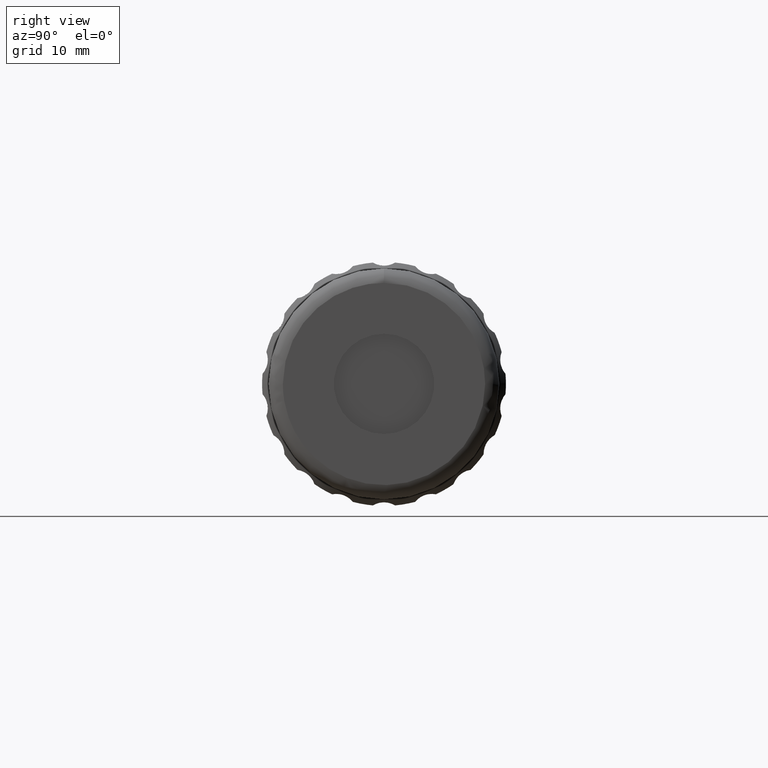
[diagram: clean part render]
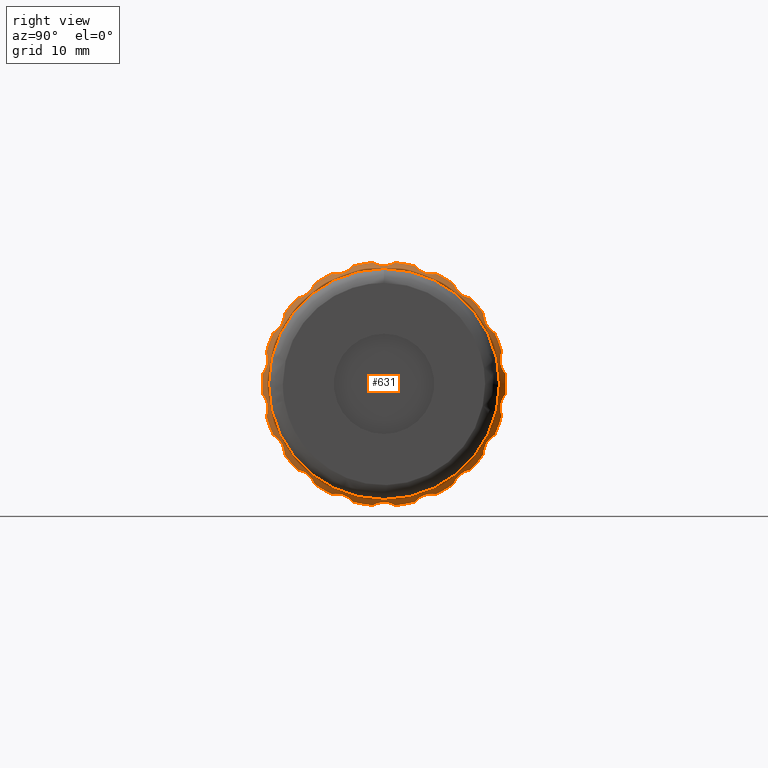
[diagram: same view with one face highlighted and labeled with its STEP entity id]
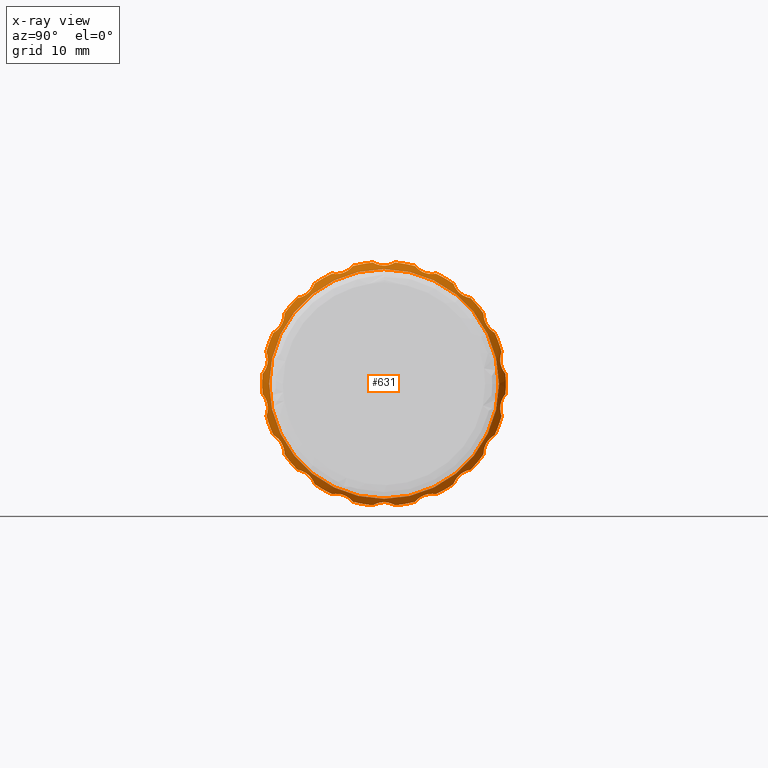
[diagram: x-ray of the same camera — body ghosted, the highlighted face saturated]
A machine part, right view. The second image highlights one B-rep face of the part: STEP entity #631.
The next image is the same camera in x-ray: the body ghosted, the highlighted face saturated — about 11% of this face is hidden behind the body in this view.
In plain terms, the highlighted conical surface has half-angle 45 deg.
Its self-contained STEP definition (entity closure, byte-faithful):
#1 = CARTESIAN_POINT ( 'NONE',  ( 32.44685803487878673, 46.02096199999999726, 0.000000000000000000 ) ) ;
#2 = CARTESIAN_POINT ( 'NONE',  ( 32.94700126034476284, 56.51882825756361228, 12.73030636577400720 ) ) ;
#6 = CIRCLE ( 'NONE', #442, 17.00000000000000000 ) ;
#10 = CARTESIAN_POINT ( 'NONE',  ( 32.94671223884979838, 60.23740799466897045, -8.376639965934810306 ) ) ;
#13 = CARTESIAN_POINT ( 'NONE',  ( 32.88671825240743374, 57.09498206104940010, 12.31354536760548690 ) ) ;
#17 = CARTESIAN_POINT ( 'NONE',  ( 32.44685803487878673, 38.77725821771978332, 15.37949139323467307 ) ) ;
#22 = DIRECTION ( 'NONE',  ( 1.000000000000000000, -0.000000000000000000, -0.000000000000000000 ) ) ;
#25 = CARTESIAN_POINT ( 'NONE',  ( 32.93501117040977988, 56.84999067884827895, -12.46565831306566352 ) ) ;
#29 = CARTESIAN_POINT ( 'NONE',  ( 32.44685803487880804, 50.35770948083634835, -16.43753695927276226 ) ) ;
#32 = EDGE_CURVE ( 'NONE', #614, #1805, #108, .T. ) ;
#34 = ORIENTED_EDGE ( 'NONE', *, *, #967, .T. ) ;
#35 = CARTESIAN_POINT ( 'NONE',  ( 32.93404516599888865, 35.18529463847772121, -12.46115531925905806 ) ) ;
#42 = CARTESIAN_POINT ( 'NONE',  ( 32.93501117040983672, 31.86424395090698525, -8.499872551038858859 ) ) ;
#46 = AXIS2_PLACEMENT_3D ( 'NONE', #483, #1811, #347 ) ;
#55 = EDGE_CURVE ( 'NONE', #638, #231, #1942, .T. ) ;
#63 = EDGE_CURVE ( 'NONE', #1070, #450, #1765, .T. ) ;
#65 = CARTESIAN_POINT ( 'NONE',  ( 32.94671223884985523, 45.87480198847892865, -16.50012336588022066 ) ) ;
#72 = ORIENTED_EDGE ( 'NONE', *, *, #1160, .T. ) ;
#74 = CARTESIAN_POINT ( 'NONE',  ( 32.71993598786258417, 44.92746810093409238, 16.69313033811514302 ) ) ;
#78 = AXIS2_PLACEMENT_3D ( 'NONE', #934, #914, #902 ) ;
#79 = DIRECTION ( 'NONE',  ( 1.000000000000000000, -0.000000000000000000, -0.000000000000000000 ) ) ;
#90 = CARTESIAN_POINT ( 'NONE',  ( 32.85210940846929617, 62.47151406203238366, 2.186719745017569494 ) ) ;
#91 = CARTESIAN_POINT ( 'NONE',  ( 32.93501117040977988, 31.58149741732376725, 8.010141189208871637 ) ) ;
#96 = CARTESIAN_POINT ( 'NONE',  ( 32.44685803487878673, 61.45570754086772070, 7.125210880294360116 ) ) ;
#101 = CARTESIAN_POINT ( 'NONE',  ( 32.88671825240741242, 31.97150365186628918, 8.767556099430427352 ) ) ;
#108 = B_SPLINE_CURVE_WITH_KNOTS ( 'NONE', 3,
 ( #431, #2101, #1884, #1075, #1250, #747, #418, #1425, #270, #2053, #1907, #778, #1437, #589 ),
 .UNSPECIFIED., .F., .F.,
 ( 4, 2, 2, 2, 2, 2, 4 ),
 ( 1.821459649775647449E-17, 0.0008570537395405575720, 0.001285580609310824811, 0.001714107479081089990, 0.002142634348851355387, 0.002571161218621621000, 0.003428214958162146588 ),
 .UNSPECIFIED. ) ;
#109 = AXIS2_PLACEMENT_3D ( 'NONE', #1, #645, #1299 ) ;
#121 = DIRECTION ( 'NONE',  ( 1.000000000000000000, -0.000000000000000000, -0.000000000000000000 ) ) ;
#129 = CARTESIAN_POINT ( 'NONE',  ( 32.71993598786254154, 57.58876427318681834, -12.08479540418657017 ) ) ;
#133 = VERTEX_POINT ( 'NONE', #670 ) ;
#143 = CARTESIAN_POINT ( 'NONE',  ( 32.44685803487880094, 50.35770948083630572, 16.43753695927281200 ) ) ;
#149 = VERTEX_POINT ( 'NONE', #476 ) ;
#150 = AXIS2_PLACEMENT_3D ( 'NONE', #740, #592, #908 ) ;
#153 = CARTESIAN_POINT ( 'NONE',  ( 32.59397570363886132, 62.33536472968091147, 4.230856126619375601 ) ) ;
#158 = CARTESIAN_POINT ( 'NONE',  ( 32.85210940846939565, 51.03106894574504793, -15.82091131322981070 ) ) ;
#159 = AXIS2_PLACEMENT_3D ( 'NONE', #479, #1774, #1577 ) ;
#168 = DIRECTION ( 'NONE',  ( 1.000000000000000000, -0.000000000000000000, -0.000000000000000000 ) ) ;
#177 = CARTESIAN_POINT ( 'NONE',  ( 32.93501117040978698, 56.41679785712319273, 12.82915025000380460 ) ) ;
#180 = CARTESIAN_POINT ( 'NONE',  ( 32.59371544402082321, 55.79883465147822363, -13.72813594343331189 ) ) ;
#182 = CARTESIAN_POINT ( 'NONE',  ( 32.71832649179928865, 31.01444400173102878, -7.396964432529726352 ) ) ;
#186 = CARTESIAN_POINT ( 'NONE',  ( 32.44685803487878673, 46.02096199999999726, 0.000000000000000000 ) ) ;
#190 = CARTESIAN_POINT ( 'NONE',  ( 32.44685803487880094, 32.13297559991000441, -9.804276299192871136 ) ) ;
#192 = CARTESIAN_POINT ( 'NONE',  ( 32.88806413580804389, 60.63478551978837316, -7.787761549644995007 ) ) ;
#200 = CARTESIAN_POINT ( 'NONE',  ( 32.71832649179923891, 34.44935860872440969, -12.08340433005123593 ) ) ;
#206 = CARTESIAN_POINT ( 'NONE',  ( 32.85210940846936722, 31.31040182005778760, -7.681264582162520504 ) ) ;
#208 = CARTESIAN_POINT ( 'NONE',  ( 32.93404516599887444, 29.81145125225690151, 3.153385542406650810 ) ) ;
#218 = VERTEX_POINT ( 'NONE', #1620 ) ;
#222 = CARTESIAN_POINT ( 'NONE',  ( 33.44685803487879383, 46.02096199999999726, 15.99999999999999645 ) ) ;
#224 = B_SPLINE_CURVE_WITH_KNOTS ( 'NONE', 3,
 ( #428, #1048, #913, #1221, #1192, #229, #65, #1368, #555, #413, #1202, #1859, #392, #1533 ),
 .UNSPECIFIED., .F., .F.,
 ( 4, 2, 2, 2, 2, 2, 4 ),
 ( 1.699674944388147786E-17, 0.0008570537395406005064, 0.001285580609310882491, 0.001714107479081164800, 0.002142634348851446893, 0.002571161218621729420, 0.003428214958162306616 ),
 .UNSPECIFIED. ) ;
#229 = CARTESIAN_POINT ( 'NONE',  ( 32.93404516599891707, 45.73023547181938397, -16.51083150983224002 ) ) ;
#231 = VERTEX_POINT ( 'NONE', #548 ) ;
#232 = CARTESIAN_POINT ( 'NONE',  ( 32.44685803487878673, 55.71814035268528187, 13.96297718956140166 ) ) ;
#235 = CARTESIAN_POINT ( 'NONE',  ( 32.88806413580808652, 34.95203119838304673, 12.31632407541566465 ) ) ;
#240 = ORIENTED_EDGE ( 'NONE', *, *, #1905, .T. ) ;
#243 = CARTESIAN_POINT ( 'NONE',  ( 32.88671825240740532, 29.82010887047672298, 3.433610011084513136 ) ) ;
#249 = CARTESIAN_POINT ( 'NONE',  ( 32.94671223884984812, 40.51493292579076666, 15.55503383706371423 ) ) ;
#253 = VERTEX_POINT ( 'NONE', #1182 ) ;
#259 = CARTESIAN_POINT ( 'NONE',  ( 32.85273454226021528, 39.69180046483592861, 15.34024937236955743 ) ) ;
#263 = CARTESIAN_POINT ( 'NONE',  ( 32.44685803487877962, 47.56772114077767810, -16.92948717948717885 ) ) ;
#264 = DIRECTION ( 'NONE',  ( 1.000000000000000000, -0.000000000000000000, -0.000000000000000000 ) ) ;
#268 = CARTESIAN_POINT ( 'NONE',  ( 32.44685803487878673, 38.77725821771978332, 15.37949139323467307 ) ) ;
#270 = CARTESIAN_POINT ( 'NONE',  ( 32.93501117040975146, 60.17768004909310520, 8.499872551038848201 ) ) ;
#273 = CARTESIAN_POINT ( 'NONE',  ( 32.44685803487877251, 29.08007986503451647, -1.416514203673299832 ) ) ;
#278 = CARTESIAN_POINT ( 'NONE',  ( 32.44685803487877962, 33.95401115804232006, 11.97450196783887932 ) ) ;
#281 = CARTESIAN_POINT ( 'NONE',  ( 32.44685803487877962, 58.08791284195767446, -11.97450196783888110 ) ) ;
#286 = CARTESIAN_POINT ( 'NONE',  ( 32.71993598786259838, 41.33912331703049858, -16.06040833662843070 ) ) ;
#288 = DIRECTION ( 'NONE',  ( 0.000000000000000000, 1.000000000000000000, 0.000000000000000000 ) ) ;
#294 = CARTESIAN_POINT ( 'NONE',  ( 32.44685803487877251, 29.08007986503451647, -1.416514203673299832 ) ) ;
#296 = CARTESIAN_POINT ( 'NONE',  ( 32.71993598786259838, 50.70280068296951725, 16.06040833662844491 ) ) ;
#298 = ORIENTED_EDGE ( 'NONE', *, *, #1778, .T. ) ;
#308 = CARTESIAN_POINT ( 'NONE',  ( 32.59371544402085163, 50.51385775461107386, -16.24445744886877918 ) ) ;
#316 = CARTESIAN_POINT ( 'NONE',  ( 32.71993598786254864, 62.27060295615641650, 3.975612932441850322 ) ) ;
#317 = CARTESIAN_POINT ( 'NONE',  ( 32.93404516599887444, 29.71048298862090320, -2.580766064489512512 ) ) ;
#319 = CARTESIAN_POINT ( 'NONE',  ( 32.59397570363889685, 53.02050821910746947, -15.33186983759483013 ) ) ;
#328 = CARTESIAN_POINT ( 'NONE',  ( 32.85273454226017975, 29.81471811820888362, -3.569201001427910303 ) ) ;
#334 = CARTESIAN_POINT ( 'NONE',  ( 32.94671223884980549, 62.24503099672836015, -3.009155866290945003 ) ) ;
#347 = DIRECTION ( 'NONE',  ( 0.000000000000000000, 1.000000000000000000, 0.000000000000000000 ) ) ;
#353 = AXIS2_PLACEMENT_3D ( 'NONE', #865, #1214, #1373 ) ;
#357 = CIRCLE ( 'NONE', #78, 16.99999999999998579 ) ;
#358 = AXIS2_PLACEMENT_3D ( 'NONE', #1793, #22, #1447 ) ;
#360 = EDGE_CURVE ( 'NONE', #231, #1989, #357, .T. ) ;
#364 = ORIENTED_EDGE ( 'NONE', *, *, #1933, .T. ) ;
#365 = CARTESIAN_POINT ( 'NONE',  ( 32.44685803487880804, 30.58621645913232001, -7.125210880294336135 ) ) ;
#368 = CARTESIAN_POINT ( 'NONE',  ( 32.44685803487877962, 29.61726367720591568, 4.463034991433923793 ) ) ;
#380 = VERTEX_POINT ( 'NONE', #573 ) ;
#384 = B_SPLINE_CURVE_WITH_KNOTS ( 'NONE', 3,
 ( #1798, #681, #693, #1829, #1959, #1998, #334, #976, #1316, #502, #1149, #1807, #559, #1207 ),
 .UNSPECIFIED., .F., .F.,
 ( 4, 2, 2, 2, 2, 2, 4 ),
 ( 6.071532165918824830E-18, 0.0008570537395405441279, 0.001285580609310812668, 0.001714107479081081534, 0.002142634348851350182, 0.002571161218621618831, 0.003428214958162156129 ),
 .UNSPECIFIED. ) ;
#390 = ORIENTED_EDGE ( 'NONE', *, *, #360, .T. ) ;
#392 = CARTESIAN_POINT ( 'NONE',  ( 32.59397570363889685, 47.35457561164055562, -16.80123075031171709 ) ) ;
#404 = CARTESIAN_POINT ( 'NONE',  ( 32.44685803487879383, 44.47420285922232353, 16.92948717948717530 ) ) ;
#406 = ORIENTED_EDGE ( 'NONE', *, *, #63, .T. ) ;
#409 = CARTESIAN_POINT ( 'NONE',  ( 32.94671223884979128, 29.79689300327163792, 3.009155866290929904 ) ) ;
#413 = CARTESIAN_POINT ( 'NONE',  ( 32.88806413580809362, 46.58347441928598442, -16.54982318938170494 ) ) ;
#416 = CIRCLE ( 'NONE', #46, 16.99999999999998579 ) ;
#417 = CARTESIAN_POINT ( 'NONE',  ( 32.88671825240743374, 40.89412893152615425, 15.74715537869002624 ) ) ;
#418 = CARTESIAN_POINT ( 'NONE',  ( 32.94671223884981259, 60.38356800619005327, 8.123483399945433447 ) ) ;
#421 = B_SPLINE_CURVE_WITH_KNOTS ( 'NONE', 3,
 ( #368, #1705, #2045, #579, #243, #208, #409, #1561, #1890, #850, #1008, #1229, #729, #424 ),
 .UNSPECIFIED., .F., .F.,
 ( 4, 2, 2, 2, 2, 2, 4 ),
 ( 2.301370753934467615E-17, 0.0008570537395405523678, 0.001285580609310820258, 0.001714107479081088256, 0.002142634348851356254, 0.002571161218621624035, 0.003428214958162163501 ),
 .UNSPECIFIED. ) ;
#423 = ORIENTED_EDGE ( 'NONE', *, *, #608, .T. ) ;
#424 = CARTESIAN_POINT ( 'NONE',  ( 32.44685803487877962, 29.08007986503451647, 1.416514203673290728 ) ) ;
#427 = CARTESIAN_POINT ( 'NONE',  ( 32.59397570363890395, 44.68734838835946022, 16.80123075031171354 ) ) ;
#428 = CARTESIAN_POINT ( 'NONE',  ( 32.44685803487877251, 44.47420285922230221, -16.92948717948720727 ) ) ;
#431 = CARTESIAN_POINT ( 'NONE',  ( 32.44685803487878673, 61.45570754086772070, 7.125210880294360116 ) ) ;
#438 = CARTESIAN_POINT ( 'NONE',  ( 32.93501117040978698, 35.19193332115172979, 12.46565831306566530 ) ) ;
#442 = AXIS2_PLACEMENT_3D ( 'NONE', #2074, #79, #2063 ) ;
#450 = VERTEX_POINT ( 'NONE', #607 ) ;
#451 = CARTESIAN_POINT ( 'NONE',  ( 32.59371544402078058, 62.79881279935864313, 1.603818139432604095 ) ) ;
#453 = CARTESIAN_POINT ( 'NONE',  ( 32.44685803487879383, 47.56772114077768521, 16.92948717948718240 ) ) ;
#454 = CARTESIAN_POINT ( 'NONE',  ( 32.93404516599894549, 51.94119253261677471, 15.41567220399189075 ) ) ;
#456 = EDGE_CURVE ( 'NONE', #1490, #1717, #1562, .T. ) ;
#461 = VERTEX_POINT ( 'NONE', #1482 ) ;
#467 = CARTESIAN_POINT ( 'NONE',  ( 32.88806413580812915, 51.15274612974332058, 15.74413730464015160 ) ) ;
#470 = CARTESIAN_POINT ( 'NONE',  ( 32.59397570363889685, 36.24294634268018456, -13.72771975950780288 ) ) ;
#473 = CARTESIAN_POINT ( 'NONE',  ( 32.85273454226017265, 60.72990324967569364, -7.683006173255046534 ) ) ;
#474 = CARTESIAN_POINT ( 'NONE',  ( 32.44685803487880804, 29.61726367720594766, -4.463034991433898035 ) ) ;
#476 = CARTESIAN_POINT ( 'NONE',  ( 32.44685803487879383, 36.32378364731472686, 13.96297718956139100 ) ) ;
#479 = CARTESIAN_POINT ( 'NONE',  ( 32.44685803487879383, 46.02096199999999726, 0.000000000000000000 ) ) ;
#482 = EDGE_CURVE ( 'NONE', #1391, #133, #416, .T. ) ;
#483 = CARTESIAN_POINT ( 'NONE',  ( 32.44685803487881515, 46.02096199999999726, 0.000000000000000000 ) ) ;
#492 = CARTESIAN_POINT ( 'NONE',  ( 32.88806413580812915, 31.96965089949768668, -8.762061639736757002 ) ) ;
#494 = CARTESIAN_POINT ( 'NONE',  ( 32.71993598786254154, 61.02438389102538707, -7.399571673583226428 ) ) ;
#495 = EDGE_CURVE ( 'NONE', #671, #1599, #1745, .T. ) ;
#497 = CARTESIAN_POINT ( 'NONE',  ( 32.59397570363891816, 55.79897765731979575, 13.72771975950780821 ) ) ;
#502 = CARTESIAN_POINT ( 'NONE',  ( 32.88806413580805099, 62.41703544440839835, -2.319880045867577234 ) ) ;
#504 = CARTESIAN_POINT ( 'NONE',  ( 32.44685803487879383, 46.02096199999999726, 0.000000000000000000 ) ) ;
#510 = DIRECTION ( 'NONE',  ( 1.000000000000000000, -0.000000000000000000, -0.000000000000000000 ) ) ;
#511 = ORIENTED_EDGE ( 'NONE', *, *, #935, .T. ) ;
#519 = VERTEX_POINT ( 'NONE', #801 ) ;
#524 = B_SPLINE_CURVE_WITH_KNOTS ( 'NONE', 3,
 ( #1479, #180, #1468, #1315, #1969, #1148, #1806, #985, #25, #672, #1323, #129, #802, #281 ),
 .UNSPECIFIED., .F., .F.,
 ( 4, 2, 2, 2, 2, 2, 4 ),
 ( 3.469446951953614189E-18, 0.0008570537395405488984, 0.001285580609310823510, 0.001714107479081098230, 0.002142634348851372734, 0.002571161218621647020, 0.003428214958162201231 ),
 .UNSPECIFIED. ) ;
#526 = CARTESIAN_POINT ( 'NONE',  ( 32.94700126034473442, 35.52309574243637513, -12.73030636577401431 ) ) ;
#534 = ORIENTED_EDGE ( 'NONE', *, *, #1471, .F. ) ;
#536 = CARTESIAN_POINT ( 'NONE',  ( 32.44685803487877962, 29.08007986503451647, 1.416514203673290728 ) ) ;
#538 = B_SPLINE_CURVE_WITH_KNOTS ( 'NONE', 3,
 ( #1747, #1438, #590, #1559, #1226, #2043, #782, #1067, #1571, #2091, #626, #286, #1887, #1760 ),
 .UNSPECIFIED., .F., .F.,
 ( 4, 2, 2, 2, 2, 2, 4 ),
 ( 1.561251128379126385E-17, 0.0008570537395405986632, 0.001285580609310886828, 0.001714107479081174992, 0.002142634348851465108, 0.002571161218621755007, 0.003428214958162318325 ),
 .UNSPECIFIED. ) ;
#546 = DIRECTION ( 'NONE',  ( 0.000000000000000000, 1.000000000000000000, 1.065814103640150437E-14 ) ) ;
#548 = CARTESIAN_POINT ( 'NONE',  ( 32.44685803487880094, 50.35770948083630572, 16.43753695927281200 ) ) ;
#555 = CARTESIAN_POINT ( 'NONE',  ( 32.93501117040979409, 46.30370853358314776, -16.51001374024769675 ) ) ;
#559 = CARTESIAN_POINT ( 'NONE',  ( 32.59397570363887553, 62.79852387642730349, -1.604150078087053233 ) ) ;
#563 = CARTESIAN_POINT ( 'NONE',  ( 32.93404516599891707, 46.31168852818061055, 16.51083150983224357 ) ) ;
#570 = CARTESIAN_POINT ( 'NONE',  ( 32.93501117040979409, 35.62512614287679469, -12.82915025000381171 ) ) ;
#573 = CARTESIAN_POINT ( 'NONE',  ( 32.44685803487877962, 58.08791284195770288, 11.97450196783888643 ) ) ;
#575 = CARTESIAN_POINT ( 'NONE',  ( 32.71832649179923180, 32.11174389140475682, 9.297543592584467831 ) ) ;
#579 = CARTESIAN_POINT ( 'NONE',  ( 32.85210940846931038, 29.81459741884976111, 3.571575765922793355 ) ) ;
#585 = B_SPLINE_CURVE_WITH_KNOTS ( 'NONE', 3,
 ( #1866, #2027, #868, #722, #1891, #563, #2048, #1543, #879, #2038, #743, #74, #427, #1071 ),
 .UNSPECIFIED., .F., .F.,
 ( 4, 2, 2, 2, 2, 2, 4 ),
 ( 0.000000000000000000, 0.0008570537395405847855, 0.001285580609310872299, 0.001714107479081159813, 0.002142634348851447327, 0.002571161218621734624, 0.003428214958162296641 ),
 .UNSPECIFIED. ) ;
#589 = CARTESIAN_POINT ( 'NONE',  ( 32.44685803487879383, 59.90894840009004696, 9.804276299192796529 ) ) ;
#590 = CARTESIAN_POINT ( 'NONE',  ( 32.71832649179927444, 39.27997936338324791, -15.31240733331347137 ) ) ;
#591 = ORIENTED_EDGE ( 'NONE', *, *, #1366, .T. ) ;
#592 = DIRECTION ( 'NONE',  ( -1.000000000000000000, 0.000000000000000000, 2.040851148208006519E-16 ) ) ;
#596 = CARTESIAN_POINT ( 'NONE',  ( 32.88671825240744084, 35.81747045796283402, 13.04400552683793890 ) ) ;
#599 = CARTESIAN_POINT ( 'NONE',  ( 32.85210940846931038, 32.01351164868641774, 8.899086528648499694 ) ) ;
#602 = VERTEX_POINT ( 'NONE', #1972 ) ;
#607 = CARTESIAN_POINT ( 'NONE',  ( 32.44685803487878673, 53.26466578228019699, -15.37949139323468017 ) ) ;
#608 = EDGE_CURVE ( 'NONE', #1016, #1402, #1046, .T. ) ;
#610 = CARTESIAN_POINT ( 'NONE',  ( 32.59397570363886842, 30.80386254956549053, 7.245672108642462028 ) ) ;
#611 = CARTESIAN_POINT ( 'NONE',  ( 32.71832649179928865, 52.76194463661674661, 15.31240733331347492 ) ) ;
#612 = CIRCLE ( 'NONE', #1603, 16.99999999999998579 ) ;
#613 = CARTESIAN_POINT ( 'NONE',  ( 32.44685803487879383, 55.71814035268526766, -13.96297718956138922 ) ) ;
#614 = VERTEX_POINT ( 'NONE', #96 ) ;
#626 = CARTESIAN_POINT ( 'NONE',  ( 32.85273454226025081, 41.00885879755396957, -15.81961940227117047 ) ) ;
#631 = ADVANCED_FACE ( 'NONE', ( #899, #1347 ), #821, .T. ) ;
#634 = CARTESIAN_POINT ( 'NONE',  ( 32.71832649179921759, 59.93018010859523770, -9.297543592584473160 ) ) ;
#635 = CARTESIAN_POINT ( 'NONE',  ( 32.88806413580805810, 29.82024706863964880, -3.427813229224472291 ) ) ;
#638 = VERTEX_POINT ( 'NONE', #1992 ) ;
#645 = DIRECTION ( 'NONE',  ( 1.000000000000000000, -0.000000000000000000, -0.000000000000000000 ) ) ;
#654 = CARTESIAN_POINT ( 'NONE',  ( 32.71993598786254864, 34.45315972681317618, 12.08479540418656484 ) ) ;
#657 = CARTESIAN_POINT ( 'NONE',  ( 32.71832649179925312, 57.59256539127557062, 12.08340433005123948 ) ) ;
#662 = DIRECTION ( 'NONE',  ( -1.000000000000000000, 0.000000000000000000, 0.000000000000000000 ) ) ;
#665 = CARTESIAN_POINT ( 'NONE',  ( 32.44685803487880804, 62.42466032279404686, 4.463034991433892706 ) ) ;
#670 = CARTESIAN_POINT ( 'NONE',  ( 32.44685803487878673, 33.95401115804229875, -11.97450196783888821 ) ) ;
#671 = VERTEX_POINT ( 'NONE', #1241 ) ;
#672 = CARTESIAN_POINT ( 'NONE',  ( 32.88806413580807941, 57.08989280161696911, -12.31632407541566110 ) ) ;
#673 = CARTESIAN_POINT ( 'NONE',  ( 32.88671825240747637, 31.40330651472126533, -7.783409789179908778 ) ) ;
#675 = CARTESIAN_POINT ( 'NONE',  ( 32.94700126034474152, 62.24567731064608722, 3.004082092195003106 ) ) ;
#680 = ORIENTED_EDGE ( 'NONE', *, *, #1433, .T. ) ;
#681 = CARTESIAN_POINT ( 'NONE',  ( 32.59371544402080190, 62.33552269872132712, -4.231266864385903936 ) ) ;
#693 = CARTESIAN_POINT ( 'NONE',  ( 32.71832649179923180, 62.27129880966106157, -3.979600334337187739 ) ) ;
#702 = EDGE_CURVE ( 'NONE', #1772, #1095, #421, .T. ) ;
#710 = B_SPLINE_CURVE_WITH_KNOTS ( 'NONE', 3,
 ( #1412, #792, #657, #2100, #13, #1619, #949, #2, #177, #1605, #777, #1928, #497, #937 ),
 .UNSPECIFIED., .F., .F.,
 ( 4, 2, 2, 2, 2, 2, 4 ),
 ( 2.255140518769849223E-17, 0.0008570537395405681972, 0.001285580609310841074, 0.001714107479081113843, 0.002142634348851386612, 0.002571161218621659597, 0.003428214958162220313 ),
 .UNSPECIFIED. ) ;
#711 = VERTEX_POINT ( 'NONE', #263 ) ;
#719 = AXIS2_PLACEMENT_3D ( 'NONE', #1616, #1151, #1649 ) ;
#722 = CARTESIAN_POINT ( 'NONE',  ( 32.85210940846934591, 46.72407182862872332, 16.58035111081103352 ) ) ;
#725 = CARTESIAN_POINT ( 'NONE',  ( 32.44685803487879383, 30.58621645913232356, 7.125210880294359228 ) ) ;
#729 = CARTESIAN_POINT ( 'NONE',  ( 32.59397570363886842, 29.24340012357269458, 1.604150078087035025 ) ) ;
#735 = EDGE_CURVE ( 'NONE', #133, #1016, #1673, .T. ) ;
#736 = VERTEX_POINT ( 'NONE', #1920 ) ;
#740 = CARTESIAN_POINT ( 'NONE',  ( 32.44685803487877251, 46.02096199999999726, 0.000000000000000000 ) ) ;
#743 = CARTESIAN_POINT ( 'NONE',  ( 32.85273454226021528, 45.32016989863367229, 16.57981987161946691 ) ) ;
#746 = AXIS2_PLACEMENT_3D ( 'NONE', #975, #662, #1796 ) ;
#747 = CARTESIAN_POINT ( 'NONE',  ( 32.93404516599887444, 60.46512478920966061, 8.003639195957678254 ) ) ;
#748 = CARTESIAN_POINT ( 'NONE',  ( 32.44685803487879383, 61.45570754086768517, -7.125210880294358340 ) ) ;
#755 = CARTESIAN_POINT ( 'NONE',  ( 32.94700126034473442, 31.66112224774798278, 8.127785578975540659 ) ) ;
#758 = VERTEX_POINT ( 'NONE', #273 ) ;
#760 = B_SPLINE_CURVE_WITH_KNOTS ( 'NONE', 3,
 ( #1051, #2041, #1074, #1581, #417, #1713, #249, #894, #1064, #1723, #259, #1556, #1732, #268 ),
 .UNSPECIFIED., .F., .F.,
 ( 4, 2, 2, 2, 2, 2, 4 ),
 ( 1.430489624538199204E-17, 0.0008570537395405792560, 0.001285580609310864927, 0.001714107479081150706, 0.002142634348851436485, 0.002571161218621722047, 0.003428214958162300111 ),
 .UNSPECIFIED. ) ;
#768 = CARTESIAN_POINT ( 'NONE',  ( 32.44685803487879383, 53.26466578228019699, 15.37949139323468017 ) ) ;
#776 = CARTESIAN_POINT ( 'NONE',  ( 32.85210940846931749, 29.57040993796760020, -2.186719745017569050 ) ) ;
#777 = CARTESIAN_POINT ( 'NONE',  ( 32.85273454226020817, 56.14142688927830704, 13.15133936029216954 ) ) ;
#778 = CARTESIAN_POINT ( 'NONE',  ( 32.71993598786254864, 59.93088999195953903, 9.293558664531927249 ) ) ;
#782 = CARTESIAN_POINT ( 'NONE',  ( 32.94671223884986944, 40.24024195723010422, -15.45505450088583821 ) ) ;
#788 = CIRCLE ( 'NONE', #159, 17.00000000000000000 ) ;
#790 = CARTESIAN_POINT ( 'NONE',  ( 32.94671223884980549, 62.29579183602519521, 2.721276841238303934 ) ) ;
#792 = CARTESIAN_POINT ( 'NONE',  ( 32.59371544402080190, 57.84262694411020078, 12.01319058448289923 ) ) ;
#793 = CARTESIAN_POINT ( 'NONE',  ( 32.88671825240747637, 51.14779506847382606, -15.74715537868998183 ) ) ;
#794 = EDGE_CURVE ( 'NONE', #1717, #614, #1950, .T. ) ;
#801 = CARTESIAN_POINT ( 'NONE',  ( 32.44685803487879383, 41.68421451916365328, -16.43753695927281200 ) ) ;
#802 = CARTESIAN_POINT ( 'NONE',  ( 32.59397570363888264, 57.84219225024989441, -12.01325914816416329 ) ) ;
#808 = CARTESIAN_POINT ( 'NONE',  ( 32.59371544402083742, 30.80347752111280712, -7.245459005800692687 ) ) ;
#821 = CONICAL_SURFACE ( 'NONE', #150, 17.00000000000001421, 0.7853981633974447263 ) ;
#837 = CARTESIAN_POINT ( 'NONE',  ( 32.71993598786259838, 32.11103400804057628, -9.293558664531980540 ) ) ;
#850 = CARTESIAN_POINT ( 'NONE',  ( 32.88806413580805099, 29.62488855559159973, 2.319880045867564355 ) ) ;
#855 = EDGE_CURVE ( 'NONE', #758, #1095, #1913, .T. ) ;
#865 = CARTESIAN_POINT ( 'NONE',  ( 33.44685803487879383, 46.02096199999999726, -2.040851148208057549E-16 ) ) ;
#867 = EDGE_CURVE ( 'NONE', #1596, #922, #524, .T. ) ;
#868 = CARTESIAN_POINT ( 'NONE',  ( 32.71832649179926022, 47.11826188967381768, 16.69450802511423149 ) ) ;
#876 = EDGE_CURVE ( 'NONE', #1599, #218, #612, .T. ) ;
#879 = CARTESIAN_POINT ( 'NONE',  ( 32.93501117040980120, 45.73821546641686098, 16.51001374024769675 ) ) ;
#894 = CARTESIAN_POINT ( 'NONE',  ( 32.94700126034476995, 40.24512641806274615, 15.45657204746855840 ) ) ;
#899 = FACE_OUTER_BOUND ( 'NONE', #1956, .T. ) ;
#902 = DIRECTION ( 'NONE',  ( 0.000000000000000000, 1.000000000000000000, 0.000000000000000000 ) ) ;
#908 = DIRECTION ( 'NONE',  ( 0.000000000000000000, 0.000000000000000000, 1.000000000000000000 ) ) ;
#909 = DIRECTION ( 'NONE',  ( -1.000000000000000000, 0.000000000000000000, 0.000000000000000000 ) ) ;
#913 = CARTESIAN_POINT ( 'NONE',  ( 32.71832649179925312, 44.92366211032619816, -16.69450802511422438 ) ) ;
#914 = DIRECTION ( 'NONE',  ( 1.000000000000000000, -0.000000000000000000, -0.000000000000000000 ) ) ;
#922 = VERTEX_POINT ( 'NONE', #1757 ) ;
#932 = CARTESIAN_POINT ( 'NONE',  ( 32.44685803487880094, 46.02096199999999726, 0.000000000000000000 ) ) ;
#934 = CARTESIAN_POINT ( 'NONE',  ( 32.44685803487880804, 46.02096199999999726, 0.000000000000000000 ) ) ;
#935 = EDGE_CURVE ( 'NONE', #758, #602, #1871, .T. ) ;
#936 = CARTESIAN_POINT ( 'NONE',  ( 32.71832649179921759, 29.38953693794697131, -1.818341456876848783 ) ) ;
#937 = CARTESIAN_POINT ( 'NONE',  ( 32.44685803487878673, 55.71814035268528187, 13.96297718956140166 ) ) ;
#946 = CARTESIAN_POINT ( 'NONE',  ( 32.88806413580806520, 62.22167693136037769, 3.427813229224471847 ) ) ;
#949 = CARTESIAN_POINT ( 'NONE',  ( 32.94671223884983391, 56.73900192251907981, 12.54587797077277322 ) ) ;
#950 = CARTESIAN_POINT ( 'NONE',  ( 32.71832649179930286, 50.69969541838543137, -16.06300466438838725 ) ) ;
#960 = CARTESIAN_POINT ( 'NONE',  ( 32.93404516599885312, 60.17439826102904021, -8.507192313874591960 ) ) ;
#961 = CARTESIAN_POINT ( 'NONE',  ( 32.94700126034471310, 29.79624668935391441, -3.004082092195002662 ) ) ;
#967 = EDGE_CURVE ( 'NONE', #711, #1070, #2014, .T. ) ;
#968 = CARTESIAN_POINT ( 'NONE',  ( 32.94671223884989075, 31.65835599381003362, -8.123483399945421013 ) ) ;
#971 = CARTESIAN_POINT ( 'NONE',  ( 32.59371544402079479, 29.24311120064134784, -1.603818139432597878 ) ) ;
#973 = CARTESIAN_POINT ( 'NONE',  ( 32.94700126034477705, 51.79679758193721995, -15.45657204746853175 ) ) ;
#974 = ORIENTED_EDGE ( 'NONE', *, *, #735, .T. ) ;
#975 = CARTESIAN_POINT ( 'NONE',  ( 32.44685803487880094, 46.02096199999999726, 0.000000000000000000 ) ) ;
#976 = CARTESIAN_POINT ( 'NONE',  ( 32.94700126034474152, 62.29466383950087760, -2.726265681694565846 ) ) ;
#977 = EDGE_CURVE ( 'NONE', #1488, #638, #1530, .T. ) ;
#984 = ORIENTED_EDGE ( 'NONE', *, *, #2102, .T. ) ;
#985 = CARTESIAN_POINT ( 'NONE',  ( 32.94700126034475574, 56.73493106221781090, -12.54897458209228844 ) ) ;
#986 = EDGE_CURVE ( 'NONE', #1805, #380, #1739, .T. ) ;
#987 = CARTESIAN_POINT ( 'NONE',  ( 32.93404516599894549, 31.57679921079044405, -8.003639195957664043 ) ) ;
#990 = CARTESIAN_POINT ( 'NONE',  ( 32.88671825240738400, 60.07042034813371600, -8.767556099430425576 ) ) ;
#992 = CIRCLE ( 'NONE', #1822, 17.00000000000000000 ) ;
#998 = EDGE_LOOP ( 'NONE', ( #534 ) ) ;
#999 = CARTESIAN_POINT ( 'NONE',  ( 32.59371544402080190, 34.19929705588980795, -12.01319058448289923 ) ) ;
#1001 = VERTEX_POINT ( 'NONE', #222 ) ;
#1008 = CARTESIAN_POINT ( 'NONE',  ( 32.85273454226015843, 29.57133557555759396, 2.188910012077406986 ) ) ;
#1016 = VERTEX_POINT ( 'NONE', #1504 ) ;
#1018 = CARTESIAN_POINT ( 'NONE',  ( 32.88671825240743374, 34.94694193895062284, -12.31354536760549223 ) ) ;
#1031 = ORIENTED_EDGE ( 'NONE', *, *, #482, .T. ) ;
#1034 = ORIENTED_EDGE ( 'NONE', *, *, #1244, .F. ) ;
#1046 = CIRCLE ( 'NONE', #2083, 17.00000000000000000 ) ;
#1048 = CARTESIAN_POINT ( 'NONE',  ( 32.59371544402080190, 44.68697132165852537, -16.80145764331209435 ) ) ;
#1051 = CARTESIAN_POINT ( 'NONE',  ( 32.44685803487876541, 41.68421451916363196, 16.43753695927285818 ) ) ;
#1060 = CIRCLE ( 'NONE', #1344, 17.00000000000000000 ) ;
#1064 = CARTESIAN_POINT ( 'NONE',  ( 32.93501117040980120, 40.10850990309082675, 15.41763307084376500 ) ) ;
#1066 = B_SPLINE_CURVE_WITH_KNOTS ( 'NONE', 3,
 ( #1220, #1720, #1409, #2060, #596, #1901, #1245, #1699, #438, #235, #1083, #654, #2084, #278 ),
 .UNSPECIFIED., .F., .F.,
 ( 4, 2, 2, 2, 2, 2, 4 ),
 ( 1.734723475976807094E-18, 0.0008570537395405545362, 0.001285580609310830883, 0.001714107479081107338, 0.002142634348851384010, 0.002571161218621660031, 0.003428214958162204701 ),
 .UNSPECIFIED. ) ;
#1067 = CARTESIAN_POINT ( 'NONE',  ( 32.94700126034479837, 40.51021575157182042, -15.55305667428728533 ) ) ;
#1070 = VERTEX_POINT ( 'NONE', #29 ) ;
#1071 = CARTESIAN_POINT ( 'NONE',  ( 32.44685803487879383, 44.47420285922232353, 16.92948717948717530 ) ) ;
#1074 = CARTESIAN_POINT ( 'NONE',  ( 32.71832649179924601, 41.34222858161454184, 16.06300466438845120 ) ) ;
#1075 = CARTESIAN_POINT ( 'NONE',  ( 32.85210940846929617, 60.73152217994227442, 7.681264582162558696 ) ) ;
#1083 = CARTESIAN_POINT ( 'NONE',  ( 32.85273454226021528, 34.82682132065500724, 12.25041840084325884 ) ) ;
#1087 = CARTESIAN_POINT ( 'NONE',  ( 32.88806413580806520, 31.40713848021163557, 7.787761549644993231 ) ) ;
#1092 = CARTESIAN_POINT ( 'NONE',  ( 32.44685803487879383, 36.32378364731472686, -13.96297718956140699 ) ) ;
#1095 = VERTEX_POINT ( 'NONE', #536 ) ;
#1097 = CARTESIAN_POINT ( 'NONE',  ( 32.88671825240740532, 62.41914792436489989, 2.314480119284867854 ) ) ;
#1100 = CARTESIAN_POINT ( 'NONE',  ( 32.94700126034480547, 51.53170824842818121, 15.55305667428728889 ) ) ;
#1105 = DIRECTION ( 'NONE',  ( 0.000000000000000000, 1.000000000000000000, 6.217248937900876626E-15 ) ) ;
#1120 = B_SPLINE_CURVE_WITH_KNOTS ( 'NONE', 3,
 ( #1390, #1249, #575, #599, #101, #1546, #1237, #755, #91, #1087, #1906, #1758, #610, #725 ),
 .UNSPECIFIED., .F., .F.,
 ( 4, 2, 2, 2, 2, 2, 4 ),
 ( 1.398578778534940505E-17, 0.0008570537395405541025, 0.001285580609310826112, 0.001714107479081098664, 0.002142634348851370999, 0.002571161218621643117, 0.003428214958162182583 ),
 .UNSPECIFIED. ) ;
#1121 = DIRECTION ( 'NONE',  ( 1.000000000000000000, -0.000000000000000000, -0.000000000000000000 ) ) ;
#1122 = DIRECTION ( 'NONE',  ( 1.000000000000000000, -0.000000000000000000, -0.000000000000000000 ) ) ;
#1123 = EDGE_CURVE ( 'NONE', #450, #1596, #1436, .T. ) ;
#1124 = CARTESIAN_POINT ( 'NONE',  ( 32.85273454226022949, 52.35012353516404460, -15.34024937236954855 ) ) ;
#1126 = ORIENTED_EDGE ( 'NONE', *, *, #1676, .T. ) ;
#1130 = CIRCLE ( 'NONE', #1958, 17.00000000000001421 ) ;
#1134 = DIRECTION ( 'NONE',  ( 1.000000000000000000, -0.000000000000000000, -0.000000000000000000 ) ) ;
#1148 = CARTESIAN_POINT ( 'NONE',  ( 32.93404516599890286, 56.41121047876224281, -12.83490613950238668 ) ) ;
#1149 = CARTESIAN_POINT ( 'NONE',  ( 32.85273454226017975, 62.47058842444242543, -2.188910012077419420 ) ) ;
#1151 = DIRECTION ( 'NONE',  ( 1.000000000000000000, -0.000000000000000000, -0.000000000000000000 ) ) ;
#1160 = EDGE_CURVE ( 'NONE', #1188, #711, #224, .T. ) ;
#1164 = CARTESIAN_POINT ( 'NONE',  ( 32.71993598786256285, 52.75789697862287397, -15.31241445645989252 ) ) ;
#1169 = ORIENTED_EDGE ( 'NONE', *, *, #2022, .T. ) ;
#1176 = ORIENTED_EDGE ( 'NONE', *, *, #702, .T. ) ;
#1177 = CARTESIAN_POINT ( 'NONE',  ( 32.44685803487877251, 62.96184413496547450, 1.416514203673303385 ) ) ;
#1182 = CARTESIAN_POINT ( 'NONE',  ( 32.44685803487876541, 32.13297559990991914, 9.804276299192837385 ) ) ;
#1188 = VERTEX_POINT ( 'NONE', #1288 ) ;
#1192 = CARTESIAN_POINT ( 'NONE',  ( 32.88671825240744084, 45.45276486285489881, -16.55096588861032814 ) ) ;
#1195 = EDGE_CURVE ( 'NONE', #602, #1374, #1955, .T. ) ;
#1202 = CARTESIAN_POINT ( 'NONE',  ( 32.85273454226022238, 46.72175410136635065, -16.57981987161947046 ) ) ;
#1207 = CARTESIAN_POINT ( 'NONE',  ( 32.44685803487877251, 62.96184413496547450, -1.416514203673302941 ) ) ;
#1214 = DIRECTION ( 'NONE',  ( 1.000000000000000000, -0.000000000000000000, -2.040851148208006519E-16 ) ) ;
#1216 = DIRECTION ( 'NONE',  ( 1.000000000000000000, -0.000000000000000000, -0.000000000000000000 ) ) ;
#1220 = CARTESIAN_POINT ( 'NONE',  ( 32.44685803487879383, 36.32378364731472686, 13.96297718956139100 ) ) ;
#1221 = CARTESIAN_POINT ( 'NONE',  ( 32.85210940846933880, 45.31785217137128541, -16.58035111081102997 ) ) ;
#1226 = CARTESIAN_POINT ( 'NONE',  ( 32.88671825240746216, 39.82626761767232892, -15.35848564612279432 ) ) ;
#1229 = CARTESIAN_POINT ( 'NONE',  ( 32.71993598786254154, 29.39155459811817650, 1.821850393098595644 ) ) ;
#1237 = CARTESIAN_POINT ( 'NONE',  ( 32.94671223884981970, 31.80451600533105250, 8.376639965934812082 ) ) ;
#1241 = CARTESIAN_POINT ( 'NONE',  ( 32.44685803487875120, 59.90894840009008959, -9.804276299192858701 ) ) ;
#1243 = ORIENTED_EDGE ( 'NONE', *, *, #55, .T. ) ;
#1244 = EDGE_CURVE ( 'NONE', #1490, #1799, #992, .T. ) ;
#1245 = CARTESIAN_POINT ( 'NONE',  ( 32.94671223884984101, 35.52685220674476341, 12.73377765964755071 ) ) ;
#1249 = CARTESIAN_POINT ( 'NONE',  ( 32.59371544402078769, 32.13746819945419020, 9.555998637511374127 ) ) ;
#1250 = CARTESIAN_POINT ( 'NONE',  ( 32.88671825240740532, 60.63861748527881446, 7.783409789179931870 ) ) ;
#1251 = EDGE_CURVE ( 'NONE', #461, #253, #1130, .T. ) ;
#1276 = CIRCLE ( 'NONE', #358, 17.00000000000001421 ) ;
#1277 = CARTESIAN_POINT ( 'NONE',  ( 32.94671223884979838, 29.74613216397480997, -2.721276841238304378 ) ) ;
#1279 = CARTESIAN_POINT ( 'NONE',  ( 32.88671825240745505, 52.21565638232765849, 15.35848564612278899 ) ) ;
#1282 = ORIENTED_EDGE ( 'NONE', *, *, #1195, .T. ) ;
#1285 = ORIENTED_EDGE ( 'NONE', *, *, #867, .T. ) ;
#1288 = CARTESIAN_POINT ( 'NONE',  ( 32.44685803487877251, 44.47420285922230221, -16.92948717948720727 ) ) ;
#1289 = CARTESIAN_POINT ( 'NONE',  ( 32.44685803487875120, 59.90894840009008959, -9.804276299192858701 ) ) ;
#1290 = CARTESIAN_POINT ( 'NONE',  ( 32.44685803487878673, 46.02096199999999726, 0.000000000000000000 ) ) ;
#1299 = DIRECTION ( 'NONE',  ( 0.000000000000000000, 1.000000000000000000, 8.881784197001252323E-16 ) ) ;
#1301 = CARTESIAN_POINT ( 'NONE',  ( 32.94671223884987654, 51.52699107420922076, -15.55503383706367870 ) ) ;
#1302 = AXIS2_PLACEMENT_3D ( 'NONE', #1951, #1134, #1628 ) ;
#1307 = EDGE_CURVE ( 'NONE', #519, #1188, #788, .T. ) ;
#1309 = CARTESIAN_POINT ( 'NONE',  ( 32.85273454226017975, 62.22720588179112156, 3.569201001427911191 ) ) ;
#1311 = CARTESIAN_POINT ( 'NONE',  ( 32.44685803487880094, 46.02096199999999726, 0.000000000000000000 ) ) ;
#1315 = CARTESIAN_POINT ( 'NONE',  ( 32.85210940846933880, 56.13999288115840614, -13.15323611948971383 ) ) ;
#1316 = CARTESIAN_POINT ( 'NONE',  ( 32.93501117040976567, 62.32924995403242008, -2.588482820839978160 ) ) ;
#1322 = VERTEX_POINT ( 'NONE', #1406 ) ;
#1323 = CARTESIAN_POINT ( 'NONE',  ( 32.85273454226019396, 57.21510267934501570, -12.25041840084325528 ) ) ;
#1334 = CARTESIAN_POINT ( 'NONE',  ( 32.94700126034479837, 31.80217333596844398, -8.372093230236085759 ) ) ;
#1337 = CARTESIAN_POINT ( 'NONE',  ( 32.94671223884983391, 35.30292207748090760, -12.54587797077277322 ) ) ;
#1343 = EDGE_CURVE ( 'NONE', #736, #1772, #2092, .T. ) ;
#1344 = AXIS2_PLACEMENT_3D ( 'NONE', #186, #1122, #1802 ) ;
#1347 = FACE_BOUND ( 'NONE', #998, .T. ) ;
#1366 = EDGE_CURVE ( 'NONE', #1374, #1391, #1889, .T. ) ;
#1368 = CARTESIAN_POINT ( 'NONE',  ( 32.94700126034476284, 46.16201308822036253, -16.49987880921160865 ) ) ;
#1373 = DIRECTION ( 'NONE',  ( 0.000000000000000000, 0.000000000000000000, 1.000000000000000000 ) ) ;
#1374 = VERTEX_POINT ( 'NONE', #1624 ) ;
#1384 = CARTESIAN_POINT ( 'NONE',  ( 32.88806413580807941, 35.81385022434190546, -13.03947610223929310 ) ) ;
#1386 = CARTESIAN_POINT ( 'NONE',  ( 32.44685803487877962, 29.61726367720591568, 4.463034991433923793 ) ) ;
#1390 = CARTESIAN_POINT ( 'NONE',  ( 32.44685803487876541, 32.13297559990991914, 9.804276299192837385 ) ) ;
#1391 = VERTEX_POINT ( 'NONE', #1820 ) ;
#1402 = VERTEX_POINT ( 'NONE', #1978 ) ;
#1403 = CARTESIAN_POINT ( 'NONE',  ( 32.44685803487878673, 33.95401115804229875, -11.97450196783888821 ) ) ;
#1406 = CARTESIAN_POINT ( 'NONE',  ( 32.44685803487876541, 41.68421451916363196, 16.43753695927285818 ) ) ;
#1409 = CARTESIAN_POINT ( 'NONE',  ( 32.71832649179926733, 36.13051957456375618, 13.49406587643664324 ) ) ;
#1412 = CARTESIAN_POINT ( 'NONE',  ( 32.44685803487877962, 58.08791284195770288, 11.97450196783888643 ) ) ;
#1416 = CARTESIAN_POINT ( 'NONE',  ( 32.71993598786256996, 36.12848957674106742, -13.49056406336132952 ) ) ;
#1425 = CARTESIAN_POINT ( 'NONE',  ( 32.94700126034472021, 60.23975066403164647, 8.372093230236089312 ) ) ;
#1427 = VERTEX_POINT ( 'NONE', #17 ) ;
#1430 = ORIENTED_EDGE ( 'NONE', *, *, #2059, .T. ) ;
#1433 = EDGE_CURVE ( 'NONE', #218, #1799, #384, .T. ) ;
#1436 = CIRCLE ( 'NONE', #1680, 17.00000000000000000 ) ;
#1437 = CARTESIAN_POINT ( 'NONE',  ( 32.59397570363886842, 59.90444783879402024, 9.555558641669255948 ) ) ;
#1438 = CARTESIAN_POINT ( 'NONE',  ( 32.59371544402081611, 39.02098385211958487, -15.33195408286590578 ) ) ;
#1447 = DIRECTION ( 'NONE',  ( 0.000000000000000000, 1.000000000000000000, -3.552713678800500929E-15 ) ) ;
#1448 = CARTESIAN_POINT ( 'NONE',  ( 32.94671223884986233, 51.80168204276987609, 15.45505450088584176 ) ) ;
#1452 = ORIENTED_EDGE ( 'NONE', *, *, #495, .T. ) ;
#1454 = DIRECTION ( 'NONE',  ( 0.000000000000000000, 1.000000000000000000, 2.664535259100375697E-14 ) ) ;
#1466 = AXIS2_PLACEMENT_3D ( 'NONE', #1290, #168, #1454 ) ;
#1468 = CARTESIAN_POINT ( 'NONE',  ( 32.71832649179927444, 55.91140442543625255, -13.49406587643664146 ) ) ;
#1471 = EDGE_CURVE ( 'NONE', #1001, #1001, #1472, .T. ) ;
#1472 = CIRCLE ( 'NONE', #353, 15.99999999999999645 ) ;
#1473 = CARTESIAN_POINT ( 'NONE',  ( 32.85210940846928196, 60.02841235131358388, -8.899086528648503247 ) ) ;
#1479 = CARTESIAN_POINT ( 'NONE',  ( 32.44685803487879383, 55.71814035268526766, -13.96297718956138922 ) ) ;
#1482 = CARTESIAN_POINT ( 'NONE',  ( 32.44685803487877962, 33.95401115804232006, 11.97450196783887932 ) ) ;
#1488 = VERTEX_POINT ( 'NONE', #232 ) ;
#1490 = VERTEX_POINT ( 'NONE', #1177 ) ;
#1491 = CARTESIAN_POINT ( 'NONE',  ( 32.85210940846931038, 34.82470436459487928, -12.24933554730703378 ) ) ;
#1498 = DIRECTION ( 'NONE',  ( 0.000000000000000000, 1.000000000000000000, -7.105427357601001859E-15 ) ) ;
#1504 = CARTESIAN_POINT ( 'NONE',  ( 32.44685803487879383, 36.32378364731472686, -13.96297718956140699 ) ) ;
#1527 = ORIENTED_EDGE ( 'NONE', *, *, #456, .T. ) ;
#1530 = CIRCLE ( 'NONE', #109, 17.00000000000000000 ) ;
#1533 = CARTESIAN_POINT ( 'NONE',  ( 32.44685803487877962, 47.56772114077767810, -16.92948717948717885 ) ) ;
#1543 = CARTESIAN_POINT ( 'NONE',  ( 32.94700126034477705, 45.87991091177963199, 16.49987880921160865 ) ) ;
#1544 = CARTESIAN_POINT ( 'NONE',  ( 32.71832649179923180, 62.65238706205303032, 1.818341456876850781 ) ) ;
#1546 = CARTESIAN_POINT ( 'NONE',  ( 32.93404516599888865, 31.86752573897096852, 8.507192313874586631 ) ) ;
#1556 = CARTESIAN_POINT ( 'NONE',  ( 32.71993598786257706, 39.28402702137709923, 15.31241445645988897 ) ) ;
#1559 = CARTESIAN_POINT ( 'NONE',  ( 32.85210940846936012, 39.68944081912606947, -15.33995586450726911 ) ) ;
#1561 = CARTESIAN_POINT ( 'NONE',  ( 32.94700126034472021, 29.74726016049911692, 2.726265681694551635 ) ) ;
#1562 = B_SPLINE_CURVE_WITH_KNOTS ( 'NONE', 3,
 ( #1914, #451, #1544, #90, #1097, #1756, #790, #675, #1981, #946, #1309, #316, #153, #665 ),
 .UNSPECIFIED., .F., .F.,
 ( 4, 2, 2, 2, 2, 2, 4 ),
 ( 3.903127820947815962E-18, 0.0008570537395405356711, 0.001285580609310801392, 0.001714107479081067439, 0.002142634348851333269, 0.002571161218621598882, 0.003428214958162131842 ),
 .UNSPECIFIED. ) ;
#1571 = CARTESIAN_POINT ( 'NONE',  ( 32.93501117040981541, 40.63989956541264092, -15.61104309072564078 ) ) ;
#1573 = ORIENTED_EDGE ( 'NONE', *, *, #1307, .T. ) ;
#1575 = EDGE_CURVE ( 'NONE', #1402, #519, #538, .T. ) ;
#1577 = DIRECTION ( 'NONE',  ( 0.000000000000000000, 1.000000000000000000, -1.154631945610162960E-14 ) ) ;
#1581 = CARTESIAN_POINT ( 'NONE',  ( 32.85210940846933170, 41.01085505425493238, 15.82091131322985866 ) ) ;
#1589 = CARTESIAN_POINT ( 'NONE',  ( 32.44685803487877251, 62.96184413496547450, -1.416514203673302941 ) ) ;
#1594 = CARTESIAN_POINT ( 'NONE',  ( 32.59397570363893237, 50.51413447943097879, 16.24411527478354955 ) ) ;
#1596 = VERTEX_POINT ( 'NONE', #613 ) ;
#1599 = VERTEX_POINT ( 'NONE', #748 ) ;
#1603 = AXIS2_PLACEMENT_3D ( 'NONE', #1311, #1121, #1781 ) ;
#1604 = CARTESIAN_POINT ( 'NONE',  ( 32.88671825240740532, 29.62277607563510173, -2.314480119284870518 ) ) ;
#1605 = CARTESIAN_POINT ( 'NONE',  ( 32.88806413580808652, 56.22807377565807485, 13.03947610223928599 ) ) ;
#1606 = CARTESIAN_POINT ( 'NONE',  ( 32.59371544402083742, 53.02094014788040255, 15.33195408286590578 ) ) ;
#1612 = CARTESIAN_POINT ( 'NONE',  ( 32.44685803487877962, 46.02096199999999726, 0.000000000000000000 ) ) ;
#1616 = CARTESIAN_POINT ( 'NONE',  ( 32.44685803487882225, 46.02096199999999726, 0.000000000000000000 ) ) ;
#1619 = CARTESIAN_POINT ( 'NONE',  ( 32.93404516599890286, 56.85662936152226621, 12.46115531925905273 ) ) ;
#1620 = CARTESIAN_POINT ( 'NONE',  ( 32.44685803487877962, 62.42466032279407528, -4.463034991433911358 ) ) ;
#1624 = CARTESIAN_POINT ( 'NONE',  ( 32.44685803487880804, 30.58621645913232001, -7.125210880294336135 ) ) ;
#1628 = DIRECTION ( 'NONE',  ( 0.000000000000000000, 1.000000000000000000, 0.000000000000000000 ) ) ;
#1630 = CARTESIAN_POINT ( 'NONE',  ( 32.93404516599894549, 51.39480538622076011, -15.61454086166568445 ) ) ;
#1645 = CARTESIAN_POINT ( 'NONE',  ( 32.85273454226025791, 32.01281285169071822, -8.896813698364468337 ) ) ;
#1649 = DIRECTION ( 'NONE',  ( 0.000000000000000000, 1.000000000000000000, 0.000000000000000000 ) ) ;
#1650 = AXIS2_PLACEMENT_3D ( 'NONE', #1786, #510, #1498 ) ;
#1651 = CARTESIAN_POINT ( 'NONE',  ( 32.44685803487879383, 61.45570754086768517, -7.125210880294358340 ) ) ;
#1673 = B_SPLINE_CURVE_WITH_KNOTS ( 'NONE', 3,
 ( #1403, #999, #200, #1491, #1018, #35, #1337, #526, #570, #1384, #2034, #1416, #470, #1092 ),
 .UNSPECIFIED., .F., .F.,
 ( 4, 2, 2, 2, 2, 2, 4 ),
 ( 1.636534854170084423E-17, 0.0008570537395405636435, 0.001285580609310837171, 0.001714107479081110807, 0.002142634348851384877, 0.002571161218621658296, 0.003428214958162212507 ),
 .UNSPECIFIED. ) ;
#1676 = EDGE_CURVE ( 'NONE', #1989, #1977, #585, .T. ) ;
#1680 = AXIS2_PLACEMENT_3D ( 'NONE', #2019, #1849, #546 ) ;
#1699 = CARTESIAN_POINT ( 'NONE',  ( 32.94700126034476284, 35.30699293778219783, 12.54897458209229022 ) ) ;
#1705 = CARTESIAN_POINT ( 'NONE',  ( 32.59371544402078058, 29.70640130127866385, 4.231266864385898607 ) ) ;
#1710 = CARTESIAN_POINT ( 'NONE',  ( 32.44685803487880804, 62.42466032279404686, 4.463034991433892706 ) ) ;
#1713 = CARTESIAN_POINT ( 'NONE',  ( 32.93404516599889575, 40.64711861377920599, 15.61454086166572175 ) ) ;
#1717 = VERTEX_POINT ( 'NONE', #1710 ) ;
#1720 = CARTESIAN_POINT ( 'NONE',  ( 32.59371544402083742, 36.24308934852178510, 13.72813594343332078 ) ) ;
#1723 = CARTESIAN_POINT ( 'NONE',  ( 32.88806413580810073, 39.83200033124971640, 15.35935614810683880 ) ) ;
#1732 = CARTESIAN_POINT ( 'NONE',  ( 32.59397570363890395, 39.02141578089251084, 15.33186983759482658 ) ) ;
#1739 = CIRCLE ( 'NONE', #1302, 16.99999999999998579 ) ;
#1745 = B_SPLINE_CURVE_WITH_KNOTS ( 'NONE', 3,
 ( #1289, #1938, #634, #1473, #990, #960, #10, #1779, #1962, #192, #473, #494, #1823, #1651 ),
 .UNSPECIFIED., .F., .F.,
 ( 4, 2, 2, 2, 2, 2, 4 ),
 ( 2.194270917860438266E-17, 0.0008570537395405623425, 0.001285580609310835003, 0.001714107479081107555, 0.002142634348851380106, 0.002571161218621652658, 0.003428214958162185619 ),
 .UNSPECIFIED. ) ;
#1747 = CARTESIAN_POINT ( 'NONE',  ( 32.44685803487877962, 38.77725821771979042, -15.37949139323468373 ) ) ;
#1756 = CARTESIAN_POINT ( 'NONE',  ( 32.93404516599888154, 62.33144101137909843, 2.580766064489510292 ) ) ;
#1757 = CARTESIAN_POINT ( 'NONE',  ( 32.44685803487877962, 58.08791284195767446, -11.97450196783888110 ) ) ;
#1758 = CARTESIAN_POINT ( 'NONE',  ( 32.71993598786255575, 31.01754010897460034, 7.399571673583222875 ) ) ;
#1759 = CARTESIAN_POINT ( 'NONE',  ( 32.85273454226024370, 51.03306520244602495, 15.81961940227117758 ) ) ;
#1760 = CARTESIAN_POINT ( 'NONE',  ( 32.44685803487879383, 41.68421451916365328, -16.43753695927281200 ) ) ;
#1765 = B_SPLINE_CURVE_WITH_KNOTS ( 'NONE', 3,
 ( #1770, #308, #950, #158, #793, #1630, #1301, #973, #1985, #1954, #1124, #1164, #319, #1794 ),
 .UNSPECIFIED., .F., .F.,
 ( 4, 2, 2, 2, 2, 2, 4 ),
 ( 1.201851678989727231E-17, 0.0008570537395405912907, 0.001285580609310872733, 0.001714107479081154392, 0.002142634348851436485, 0.002571161218621717710, 0.003428214958162281029 ),
 .UNSPECIFIED. ) ;
#1768 = CARTESIAN_POINT ( 'NONE',  ( 32.71993598786256285, 29.77132104384358158, -3.975612932441852099 ) ) ;
#1770 = CARTESIAN_POINT ( 'NONE',  ( 32.44685803487880804, 50.35770948083634835, -16.43753695927276226 ) ) ;
#1772 = VERTEX_POINT ( 'NONE', #1386 ) ;
#1774 = DIRECTION ( 'NONE',  ( 1.000000000000000000, -0.000000000000000000, -0.000000000000000000 ) ) ;
#1778 = EDGE_CURVE ( 'NONE', #149, #461, #1066, .T. ) ;
#1779 = CARTESIAN_POINT ( 'NONE',  ( 32.94700126034472731, 60.38080175225200463, -8.127785578975545988 ) ) ;
#1781 = DIRECTION ( 'NONE',  ( 0.000000000000000000, 1.000000000000000000, -1.953992523340275511E-14 ) ) ;
#1786 = CARTESIAN_POINT ( 'NONE',  ( 32.44685803487880094, 46.02096199999999726, 0.000000000000000000 ) ) ;
#1793 = CARTESIAN_POINT ( 'NONE',  ( 32.44685803487877251, 46.02096199999999726, 0.000000000000000000 ) ) ;
#1794 = CARTESIAN_POINT ( 'NONE',  ( 32.44685803487878673, 53.26466578228019699, -15.37949139323468017 ) ) ;
#1796 = DIRECTION ( 'NONE',  ( 0.000000000000000000, 0.000000000000000000, 1.000000000000000000 ) ) ;
#1798 = CARTESIAN_POINT ( 'NONE',  ( 32.44685803487877962, 62.42466032279407528, -4.463034991433911358 ) ) ;
#1799 = VERTEX_POINT ( 'NONE', #1589 ) ;
#1802 = DIRECTION ( 'NONE',  ( 0.000000000000000000, 1.000000000000000000, 0.000000000000000000 ) ) ;
#1805 = VERTEX_POINT ( 'NONE', #1936 ) ;
#1806 = CARTESIAN_POINT ( 'NONE',  ( 32.94671223884982680, 56.51507179325524532, -12.73377765964754893 ) ) ;
#1807 = CARTESIAN_POINT ( 'NONE',  ( 32.71993598786254154, 62.65036940188181802, -1.821850393098604748 ) ) ;
#1811 = DIRECTION ( 'NONE',  ( 1.000000000000000000, -0.000000000000000000, -0.000000000000000000 ) ) ;
#1816 = AXIS2_PLACEMENT_3D ( 'NONE', #1944, #121, #288 ) ;
#1820 = CARTESIAN_POINT ( 'NONE',  ( 32.44685803487880094, 32.13297559991000441, -9.804276299192871136 ) ) ;
#1822 = AXIS2_PLACEMENT_3D ( 'NONE', #932, #909, #1934 ) ;
#1823 = CARTESIAN_POINT ( 'NONE',  ( 32.59397570363887553, 61.23806145043451465, -7.245672108642466469 ) ) ;
#1829 = CARTESIAN_POINT ( 'NONE',  ( 32.85210940846930328, 62.22732658115022275, -3.571575765922810231 ) ) ;
#1838 = ORIENTED_EDGE ( 'NONE', *, *, #794, .T. ) ;
#1845 = ORIENTED_EDGE ( 'NONE', *, *, #1575, .T. ) ;
#1849 = DIRECTION ( 'NONE',  ( 1.000000000000000000, -0.000000000000000000, -0.000000000000000000 ) ) ;
#1859 = CARTESIAN_POINT ( 'NONE',  ( 32.71993598786257706, 47.11445589906591636, -16.69313033811515012 ) ) ;
#1866 = CARTESIAN_POINT ( 'NONE',  ( 32.44685803487879383, 47.56772114077768521, 16.92948717948718240 ) ) ;
#1871 = B_SPLINE_CURVE_WITH_KNOTS ( 'NONE', 3,
 ( #294, #971, #936, #776, #1604, #317, #1277, #961, #1927, #635, #328, #1768, #2099, #474 ),
 .UNSPECIFIED., .F., .F.,
 ( 4, 2, 2, 2, 2, 2, 4 ),
 ( 9.986437839578378192E-18, 0.0008570537395405388153, 0.001285580609310806380, 0.001714107479081073727, 0.002142634348851341075, 0.002571161218621608856, 0.003428214958162145286 ),
 .UNSPECIFIED. ) ;
#1873 = ORIENTED_EDGE ( 'NONE', *, *, #1343, .T. ) ;
#1884 = CARTESIAN_POINT ( 'NONE',  ( 32.71832649179925312, 61.02747999826900127, 7.396964432529774314 ) ) ;
#1887 = CARTESIAN_POINT ( 'NONE',  ( 32.59397570363893237, 41.52778952056901574, -16.24411527478351047 ) ) ;
#1889 = B_SPLINE_CURVE_WITH_KNOTS ( 'NONE', 3,
 ( #365, #808, #182, #206, #673, #987, #968, #1334, #42, #492, #1645, #837, #1988, #190 ),
 .UNSPECIFIED., .F., .F.,
 ( 4, 2, 2, 2, 2, 2, 4 ),
 ( 8.673617379884035472E-19, 0.0008570537395405953022, 0.001285580609310886611, 0.001714107479081175859, 0.002142634348851465542, 0.002571161218621754573, 0.003428214958162343045 ),
 .UNSPECIFIED. ) ;
#1890 = CARTESIAN_POINT ( 'NONE',  ( 32.93501117040975856, 29.71267404596757444, 2.588482820839963949 ) ) ;
#1891 = CARTESIAN_POINT ( 'NONE',  ( 32.88671825240743374, 46.58915913714510282, 16.55096588861032814 ) ) ;
#1901 = CARTESIAN_POINT ( 'NONE',  ( 32.93404516599891707, 35.63071352123775171, 12.83490613950239734 ) ) ;
#1905 = EDGE_CURVE ( 'NONE', #1977, #1322, #6, .T. ) ;
#1906 = CARTESIAN_POINT ( 'NONE',  ( 32.85273454226017975, 31.31202075032431154, 7.683006173255041205 ) ) ;
#1907 = CARTESIAN_POINT ( 'NONE',  ( 32.85273454226017975, 60.02911114830940420, 8.896813698364438139 ) ) ;
#1913 = CIRCLE ( 'NONE', #746, 17.00000000000000000 ) ;
#1914 = CARTESIAN_POINT ( 'NONE',  ( 32.44685803487877251, 62.96184413496547450, 1.416514203673303385 ) ) ;
#1917 = CARTESIAN_POINT ( 'NONE',  ( 32.85210940846936722, 52.35248318087391795, 15.33995586450727089 ) ) ;
#1920 = CARTESIAN_POINT ( 'NONE',  ( 32.44685803487879383, 30.58621645913232356, 7.125210880294359228 ) ) ;
#1927 = CARTESIAN_POINT ( 'NONE',  ( 32.93501117040976567, 29.81087088656429884, -3.145384777659983033 ) ) ;
#1928 = CARTESIAN_POINT ( 'NONE',  ( 32.71993598786259128, 55.91343442325894841, 13.49056406336132952 ) ) ;
#1929 = CARTESIAN_POINT ( 'NONE',  ( 32.93501117040981541, 51.40202443458736070, 15.61104309072564966 ) ) ;
#1933 = EDGE_CURVE ( 'NONE', #253, #736, #1120, .T. ) ;
#1934 = DIRECTION ( 'NONE',  ( 0.000000000000000000, 0.000000000000000000, 1.000000000000000000 ) ) ;
#1935 = ORIENTED_EDGE ( 'NONE', *, *, #1251, .T. ) ;
#1936 = CARTESIAN_POINT ( 'NONE',  ( 32.44685803487879383, 59.90894840009004696, 9.804276299192796529 ) ) ;
#1938 = CARTESIAN_POINT ( 'NONE',  ( 32.59371544402077348, 59.90445580054581853, -9.555998637511386562 ) ) ;
#1942 = B_SPLINE_CURVE_WITH_KNOTS ( 'NONE', 3,
 ( #768, #1606, #611, #1917, #1279, #454, #1448, #1100, #1929, #467, #1759, #296, #1594, #143 ),
 .UNSPECIFIED., .F., .F.,
 ( 4, 2, 2, 2, 2, 2, 4 ),
 ( 6.938893903907227607E-18, 0.0008570537395405813160, 0.001285580609310871866, 0.001714107479081162415, 0.002142634348851451230, 0.002571161218621741996, 0.003428214958162328733 ),
 .UNSPECIFIED. ) ;
#1943 = ORIENTED_EDGE ( 'NONE', *, *, #977, .T. ) ;
#1944 = CARTESIAN_POINT ( 'NONE',  ( 32.44685803487882225, 46.02096199999999726, 0.000000000000000000 ) ) ;
#1950 = CIRCLE ( 'NONE', #1816, 16.99999999999997513 ) ;
#1951 = CARTESIAN_POINT ( 'NONE',  ( 32.44685803487880094, 46.02096199999999726, 0.000000000000000000 ) ) ;
#1954 = CARTESIAN_POINT ( 'NONE',  ( 32.88806413580810784, 52.20992366875027102, -15.35935614810682814 ) ) ;
#1955 = CIRCLE ( 'NONE', #719, 16.99999999999997513 ) ;
#1956 = EDGE_LOOP ( 'NONE', ( #2031, #511, #1282, #591, #1031, #974, #423, #1845, #1573, #72, #34, #406, #2103, #1285, #984, #1452, #2007, #680, #1034, #1527, #1838, #2093, #2024, #1169, #1943, #1243, #390, #1126, #240, #2078, #1430, #298, #1935, #364, #1873, #1176 ) ) ;
#1958 = AXIS2_PLACEMENT_3D ( 'NONE', #1612, #264, #1105 ) ;
#1959 = CARTESIAN_POINT ( 'NONE',  ( 32.88671825240739821, 62.22181512952325022, -3.433610011084526459 ) ) ;
#1962 = CARTESIAN_POINT ( 'NONE',  ( 32.93501117040977277, 60.46042658267626280, -8.010141189208873413 ) ) ;
#1969 = CARTESIAN_POINT ( 'NONE',  ( 32.88671825240743374, 56.22445354203716761, -13.04400552683793357 ) ) ;
#1972 = CARTESIAN_POINT ( 'NONE',  ( 32.44685803487880804, 29.61726367720594766, -4.463034991433898035 ) ) ;
#1977 = VERTEX_POINT ( 'NONE', #404 ) ;
#1978 = CARTESIAN_POINT ( 'NONE',  ( 32.44685803487877962, 38.77725821771979042, -15.37949139323468373 ) ) ;
#1981 = CARTESIAN_POINT ( 'NONE',  ( 32.93501117040976567, 62.23105311343569923, 3.145384777659983033 ) ) ;
#1985 = CARTESIAN_POINT ( 'NONE',  ( 32.93501117040981541, 51.93341409690916066, -15.41763307084374546 ) ) ;
#1988 = CARTESIAN_POINT ( 'NONE',  ( 32.59397570363893237, 32.13747616120608797, -9.555558641669259501 ) ) ;
#1989 = VERTEX_POINT ( 'NONE', #453 ) ;
#1992 = CARTESIAN_POINT ( 'NONE',  ( 32.44685803487879383, 53.26466578228019699, 15.37949139323468017 ) ) ;
#1998 = CARTESIAN_POINT ( 'NONE',  ( 32.93404516599888154, 62.23047274774312143, -3.153385542406664577 ) ) ;
#2007 = ORIENTED_EDGE ( 'NONE', *, *, #876, .T. ) ;
#2008 = EDGE_CURVE ( 'NONE', #1322, #1427, #760, .T. ) ;
#2014 = CIRCLE ( 'NONE', #1466, 17.00000000000000000 ) ;
#2019 = CARTESIAN_POINT ( 'NONE',  ( 32.44685803487878673, 46.02096199999999726, 0.000000000000000000 ) ) ;
#2022 = EDGE_CURVE ( 'NONE', #380, #1488, #710, .T. ) ;
#2024 = ORIENTED_EDGE ( 'NONE', *, *, #986, .T. ) ;
#2027 = CARTESIAN_POINT ( 'NONE',  ( 32.59371544402081611, 47.35495267834149047, 16.80145764331209435 ) ) ;
#2031 = ORIENTED_EDGE ( 'NONE', *, *, #855, .F. ) ;
#2034 = CARTESIAN_POINT ( 'NONE',  ( 32.85273454226020107, 35.90049711072168748, -13.15133936029217665 ) ) ;
#2038 = CARTESIAN_POINT ( 'NONE',  ( 32.88806413580809362, 45.45844958071401720, 16.54982318938169783 ) ) ;
#2041 = CARTESIAN_POINT ( 'NONE',  ( 32.59371544402079479, 41.52806624538890645, 16.24445744886884668 ) ) ;
#2043 = CARTESIAN_POINT ( 'NONE',  ( 32.93404516599894549, 40.10073146738320560, -15.41567220399188543 ) ) ;
#2045 = CARTESIAN_POINT ( 'NONE',  ( 32.71832649179923891, 29.77062519033893651, 3.979600334337169087 ) ) ;
#2048 = CARTESIAN_POINT ( 'NONE',  ( 32.94671223884984101, 46.16712201152108008, 16.50012336588021356 ) ) ;
#2053 = CARTESIAN_POINT ( 'NONE',  ( 32.88806413580805099, 60.07227310050246416, 8.762061639736737462 ) ) ;
#2056 = DIRECTION ( 'NONE',  ( 0.000000000000000000, 1.000000000000000000, 0.000000000000000000 ) ) ;
#2059 = EDGE_CURVE ( 'NONE', #1427, #149, #1060, .T. ) ;
#2060 = CARTESIAN_POINT ( 'NONE',  ( 32.85210940846934591, 35.90193111884155996, 13.15323611948971916 ) ) ;
#2063 = DIRECTION ( 'NONE',  ( 0.000000000000000000, 1.000000000000000000, 1.776356839400250465E-15 ) ) ;
#2074 = CARTESIAN_POINT ( 'NONE',  ( 32.44685803487878673, 46.02096199999999726, 0.000000000000000000 ) ) ;
#2078 = ORIENTED_EDGE ( 'NONE', *, *, #2008, .T. ) ;
#2083 = AXIS2_PLACEMENT_3D ( 'NONE', #504, #1216, #2056 ) ;
#2084 = CARTESIAN_POINT ( 'NONE',  ( 32.59397570363888264, 34.19973174975009300, 12.01325914816415796 ) ) ;
#2091 = CARTESIAN_POINT ( 'NONE',  ( 32.88806413580811494, 40.88917787025669526, -15.74413730464013028 ) ) ;
#2092 = CIRCLE ( 'NONE', #1650, 16.99999999999998579 ) ;
#2093 = ORIENTED_EDGE ( 'NONE', *, *, #32, .T. ) ;
#2099 = CARTESIAN_POINT ( 'NONE',  ( 32.59397570363888974, 29.70655927031907595, -4.230856126619375601 ) ) ;
#2100 = CARTESIAN_POINT ( 'NONE',  ( 32.85210940846933170, 57.21721963540510814, 12.24933554730703378 ) ) ;
#2101 = CARTESIAN_POINT ( 'NONE',  ( 32.59371544402079479, 61.23844647888725490, 7.245459005800729102 ) ) ;
#2102 = EDGE_CURVE ( 'NONE', #922, #671, #1276, .T. ) ;
#2103 = ORIENTED_EDGE ( 'NONE', *, *, #1123, .T. ) ;